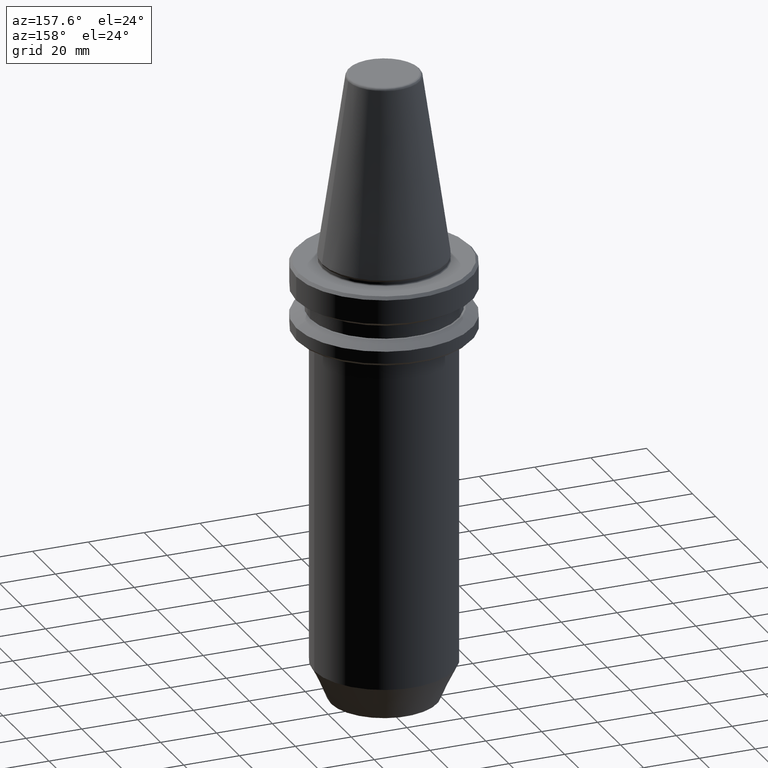
[diagram: clean part render]
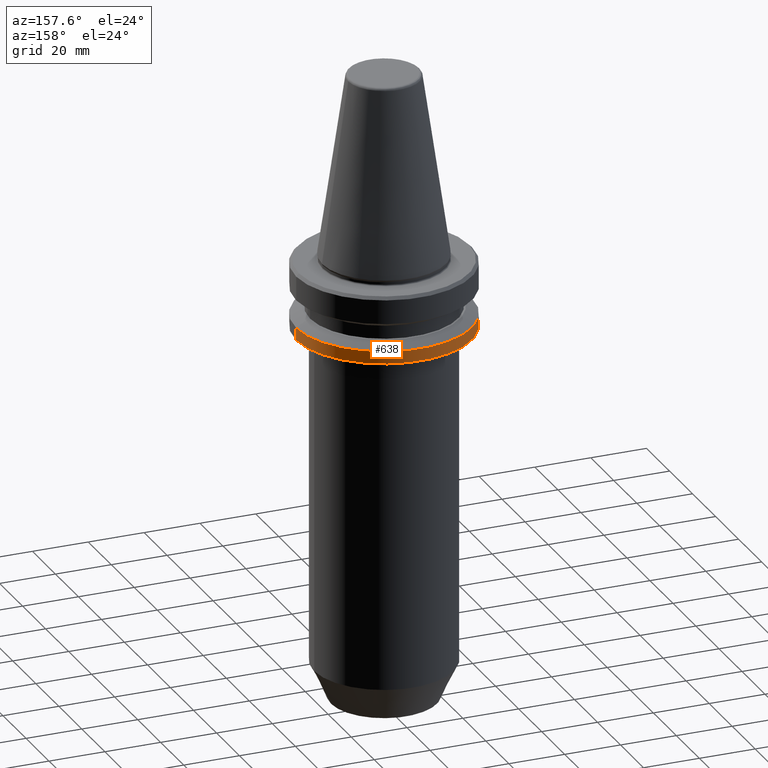
[diagram: same view with one face highlighted and labeled with its STEP entity id]
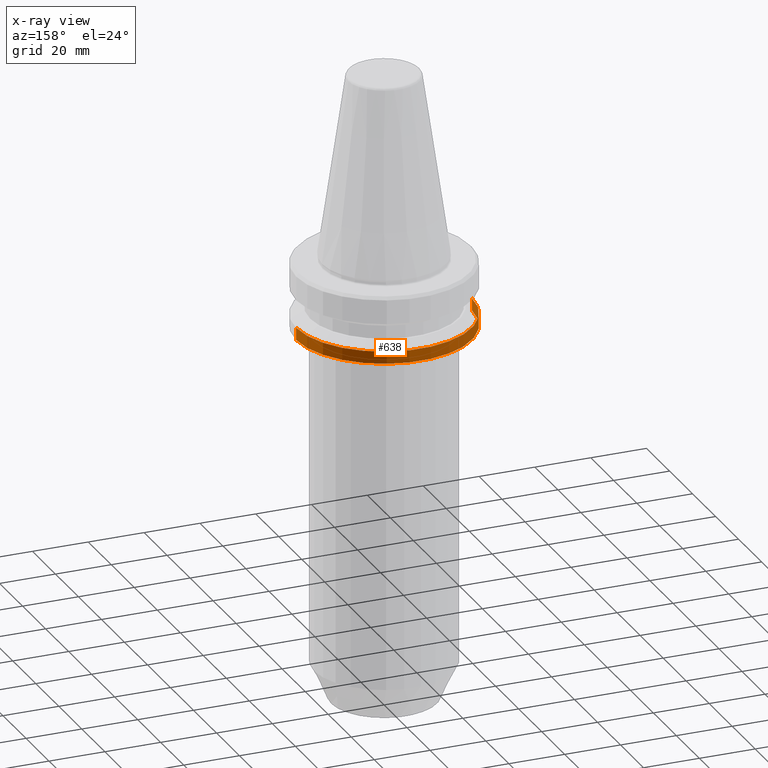
[diagram: x-ray of the same camera — body ghosted, the highlighted face saturated]
A machine part, auxiliary view. The second image highlights one B-rep face of the part: STEP entity #638.
The next image is the same camera in x-ray: the body ghosted, the highlighted face saturated — about 0% of this face is hidden behind the body in this view.
In plain terms, the highlighted cylindrical surface (partial cylindrical patch) has radius 31.5 mm, axis along (-0, -0, 1).
Its self-contained STEP definition (entity closure, byte-faithful):
#23 = ORIENTED_EDGE ( 'NONE', *, *, #73, .F. ) ;
#38 = AXIS2_PLACEMENT_3D ( 'NONE', #109, #390, #216 ) ;
#46 = CARTESIAN_POINT ( 'NONE',  ( 31.50000000000019500, 0.0000000000000000000, -25.31128678844346400 ) ) ;
#73 = EDGE_CURVE ( 'NONE', #288, #277, #874, .T. ) ;
#89 = AXIS2_PLACEMENT_3D ( 'NONE', #1053, #325, #1024 ) ;
#109 = CARTESIAN_POINT ( 'NONE',  ( 0.0000000000000000000, 0.0000000000000000000, -20.91142879476059900 ) ) ;
#117 = AXIS2_PLACEMENT_3D ( 'NONE', #224, #794, #899 ) ;
#134 = ORIENTED_EDGE ( 'NONE', *, *, #713, .F. ) ;
#177 = CARTESIAN_POINT ( 'NONE',  ( -31.50000000000019500, 3.857637417314186400E-015, 82.74845858742440900 ) ) ;
#216 = DIRECTION ( 'NONE',  ( 1.000000000000000000, 0.0000000000000000000, 0.0000000000000000000 ) ) ;
#224 = CARTESIAN_POINT ( 'NONE',  ( 0.0000000000000000000, 0.0000000000000000000, -25.31128678844346400 ) ) ;
#251 = CARTESIAN_POINT ( 'NONE',  ( 31.50000000000019500, 0.0000000000000000000, 82.74845858742440900 ) ) ;
#277 = VERTEX_POINT ( 'NONE', #616 ) ;
#288 = VERTEX_POINT ( 'NONE', #46 ) ;
#325 = DIRECTION ( 'NONE',  ( -0.0000000000000000000, -0.0000000000000000000, 1.000000000000000000 ) ) ;
#376 = VERTEX_POINT ( 'NONE', #628 ) ;
#390 = DIRECTION ( 'NONE',  ( -0.0000000000000000000, -0.0000000000000000000, 1.000000000000000000 ) ) ;
#420 = ORIENTED_EDGE ( 'NONE', *, *, #522, .T. ) ;
#443 = CIRCLE ( 'NONE', #117, 31.50000000000019500 ) ;
#522 = EDGE_CURVE ( 'NONE', #821, #376, #907, .T. ) ;
#599 = EDGE_CURVE ( 'NONE', #288, #821, #443, .T. ) ;
#610 = FACE_OUTER_BOUND ( 'NONE', #649, .T. ) ;
#613 = ORIENTED_EDGE ( 'NONE', *, *, #599, .T. ) ;
#616 = CARTESIAN_POINT ( 'NONE',  ( 31.50000000000019500, 0.0000000000000000000, -20.91142879476059900 ) ) ;
#619 = DIRECTION ( 'NONE',  ( -0.0000000000000000000, -0.0000000000000000000, 1.000000000000000000 ) ) ;
#628 = CARTESIAN_POINT ( 'NONE',  ( -31.50000000000019500, 3.857637417314186400E-015, -20.91142879476059900 ) ) ;
#638 = ADVANCED_FACE ( 'NONE', ( #610 ), #657, .T. ) ;
#649 = EDGE_LOOP ( 'NONE', ( #613, #420, #134, #23 ) ) ;
#657 = CYLINDRICAL_SURFACE ( 'NONE', #89, 31.50000000000019500 ) ;
#709 = DIRECTION ( 'NONE',  ( -0.0000000000000000000, -0.0000000000000000000, 1.000000000000000000 ) ) ;
#713 = EDGE_CURVE ( 'NONE', #277, #376, #825, .T. ) ;
#794 = DIRECTION ( 'NONE',  ( -0.0000000000000000000, -0.0000000000000000000, 1.000000000000000000 ) ) ;
#819 = CARTESIAN_POINT ( 'NONE',  ( -31.50000000000019500, 3.857637417314186400E-015, -25.31128678844346400 ) ) ;
#821 = VERTEX_POINT ( 'NONE', #819 ) ;
#825 = CIRCLE ( 'NONE', #38, 31.50000000000019500 ) ;
#849 = VECTOR ( 'NONE', #619, 1000.000000000000000 ) ;
#870 = VECTOR ( 'NONE', #709, 1000.000000000000000 ) ;
#874 = LINE ( 'NONE', #251, #870 ) ;
#899 = DIRECTION ( 'NONE',  ( 1.000000000000000000, 0.0000000000000000000, 0.0000000000000000000 ) ) ;
#907 = LINE ( 'NONE', #177, #849 ) ;
#1024 = DIRECTION ( 'NONE',  ( 1.000000000000000000, 0.0000000000000000000, 0.0000000000000000000 ) ) ;
#1053 = CARTESIAN_POINT ( 'NONE',  ( 0.0000000000000000000, 0.0000000000000000000, 82.74845858742440900 ) ) ;